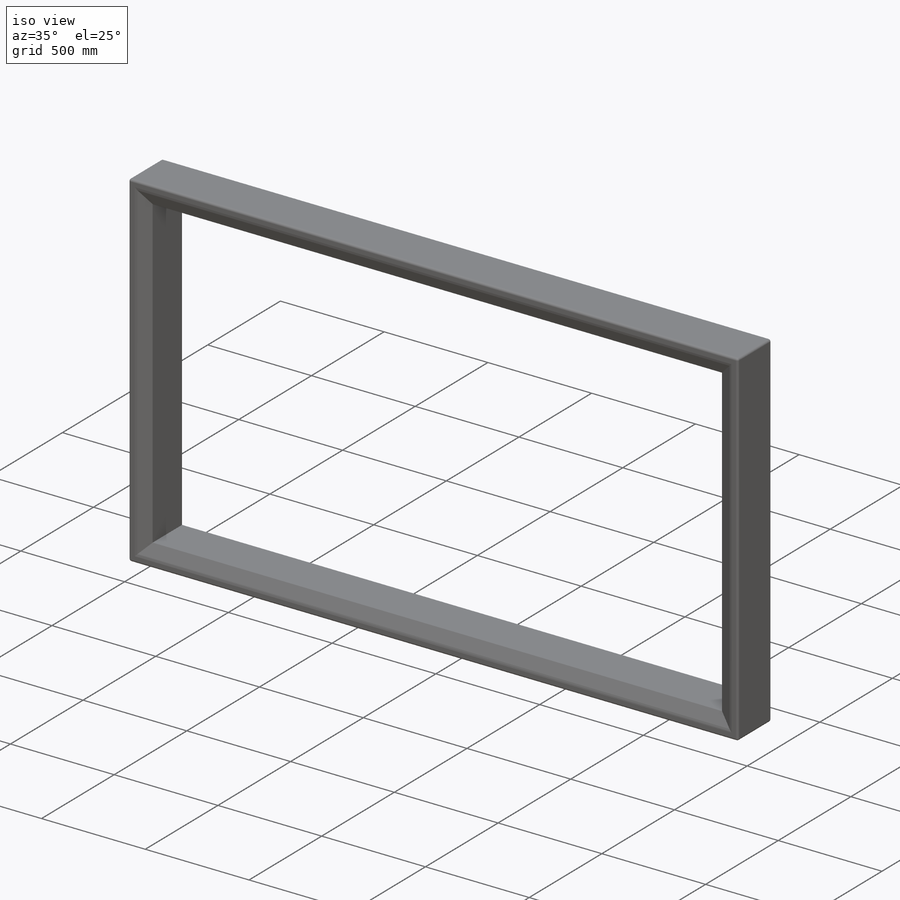
[diagram: iso view]
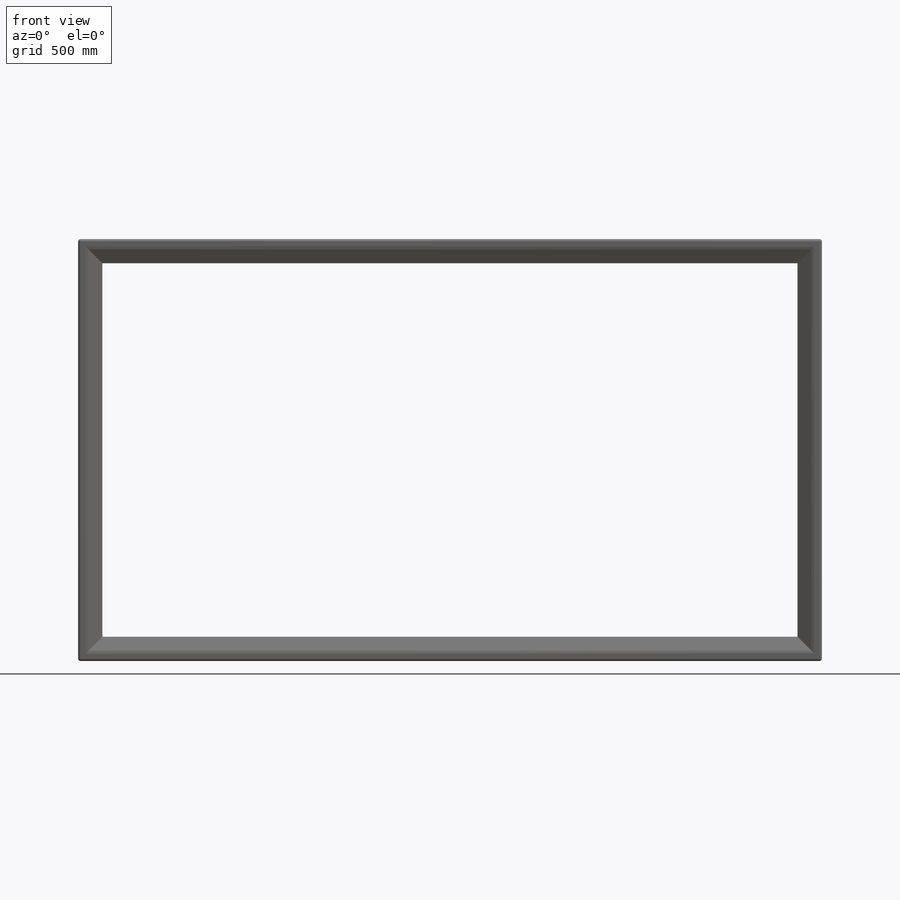
[diagram: front view]
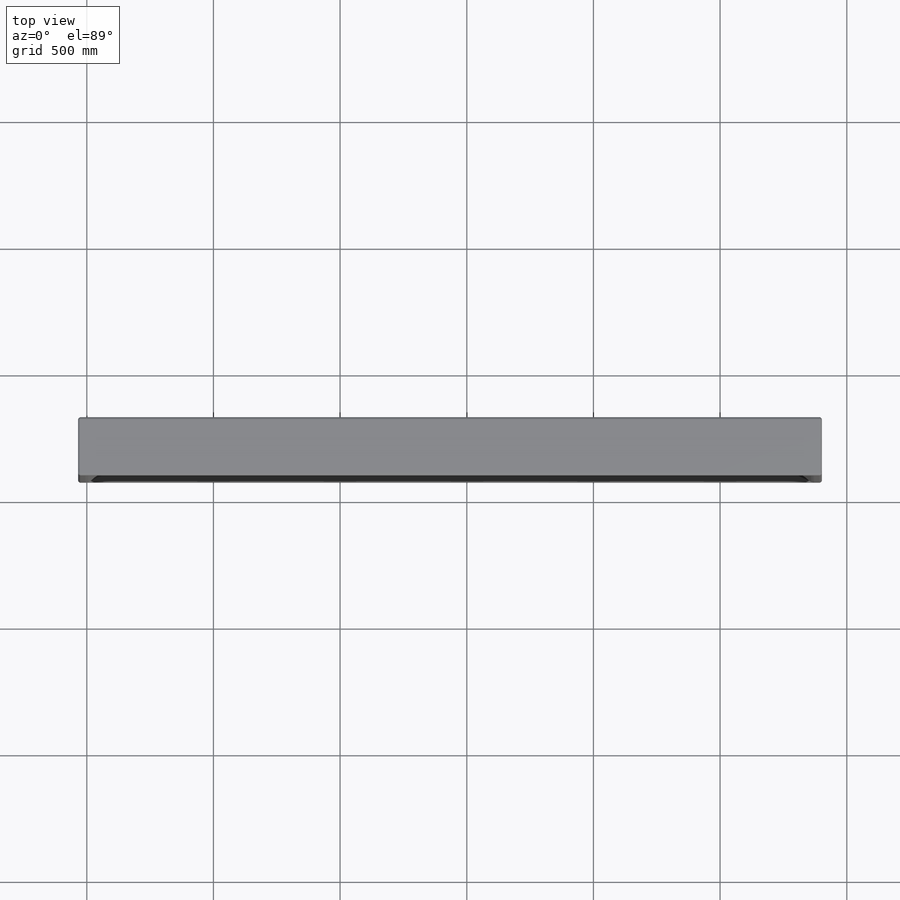
[diagram: top view]
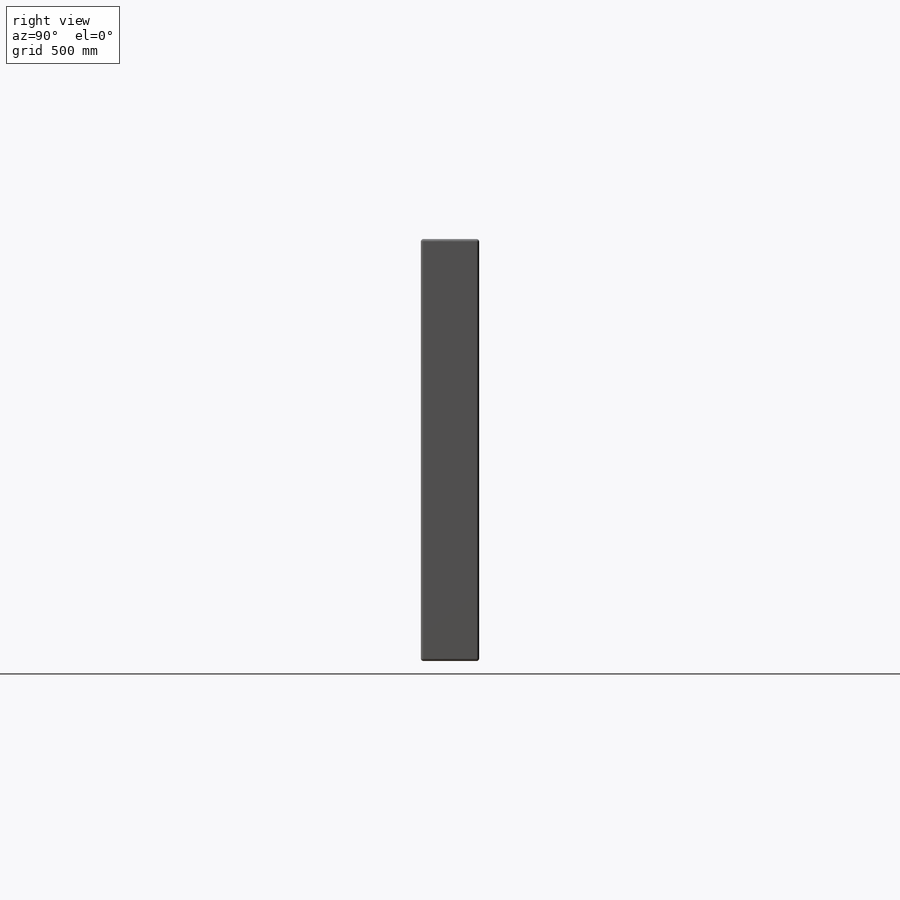
[diagram: right view]
SOLIDWORKS PART (.sldprt)
format: sldprt  version: not decoded by parser v0  size: 405,504 bytes
history: native  units: mm
features: sketch x6, plane x4, fillet x3, extrude x2, material x1, chamfer x1 (+9 scaffold rows collapsed)
feature tree (26):
  scaffold x9  (default folders/planes/origin — collapsed)
  material  "Materiał <nieokreślony>"
  plane  "Płaszczyzna przednia"
  plane  "Płaszczyzna górna"
  plane  "Płaszczyzna prawa"
  plane  "Płaszczyzna1"
  sketch  "Szkic2"  dims[D1=2840.0mm D2=48.0mm D3=48.0mm D4=48.0mm D5=48.0mm]
  extrude  "Dodanie-wyciągnięcie1"  Depth=30mm
  chamfer  "Sfazowanie1"  Distance=60mm Angle=25deg
  fillet  "Zaokrąglenie1"  Radius=30mm
  fillet  "Zaokrąglenie2"  Radius=10mm
  sketch  "Szkic3"  dims[D1=1666.0mm D2=2936.0mm D3=1474.0mm]
  extrude  "Dodanie-wyciągnięcie2"  Depth=200mm
  fillet  "Zaokrąglenie3"  Radius=10mm
  sketch  "Szkic4"  dims[D1=270.0mm D2=200.0mm D3=200.0mm D4=270.0mm D5=270.0mm D6=270.0mm D7=270.0mm D8=270.0mm D9=10.0mm D10=10.0mm D11=200.0mm D12=200.0mm D13=270.0mm D14=10.0mm D15=10.0mm D16=10.0mm D17=10.0mm D18=10.0mm D19=10.0mm]
  sketch  "Szkic6"  dims[D1=102.0mm D2=102.0mm D3=317.5mm D4=317.5mm D5=317.5mm D6=317.5mm D7=317.5mm D8=317.5mm D9=317.5mm D10=317.5mm]
  sketch  "Szkic7"  dims[D1=102.0mm D2=317.5mm D3=317.5mm D4=317.5mm D5=317.5mm D6=317.5mm D7=317.5mm D8=317.5mm]
  sketch  "Szkic8"  dims[D1=102.0mm D2=102.0mm D3=317.5mm D4=317.5mm D5=317.5mm]
decode coverage: 12 of 12 modeling features carry decoded parameters
note: suppression state not decoded; provenance and decode notes live in map.json
